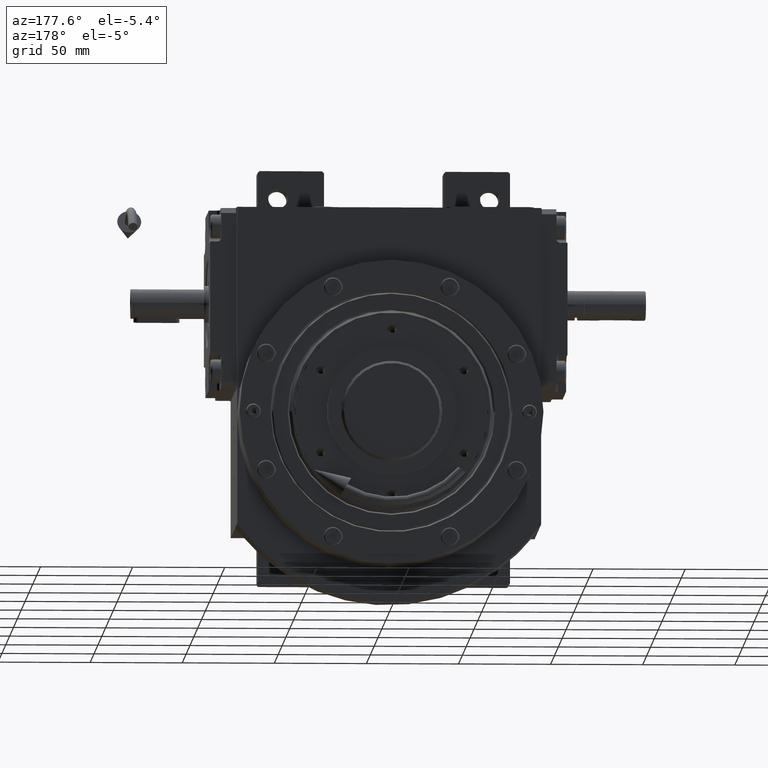
[diagram: clean part render]
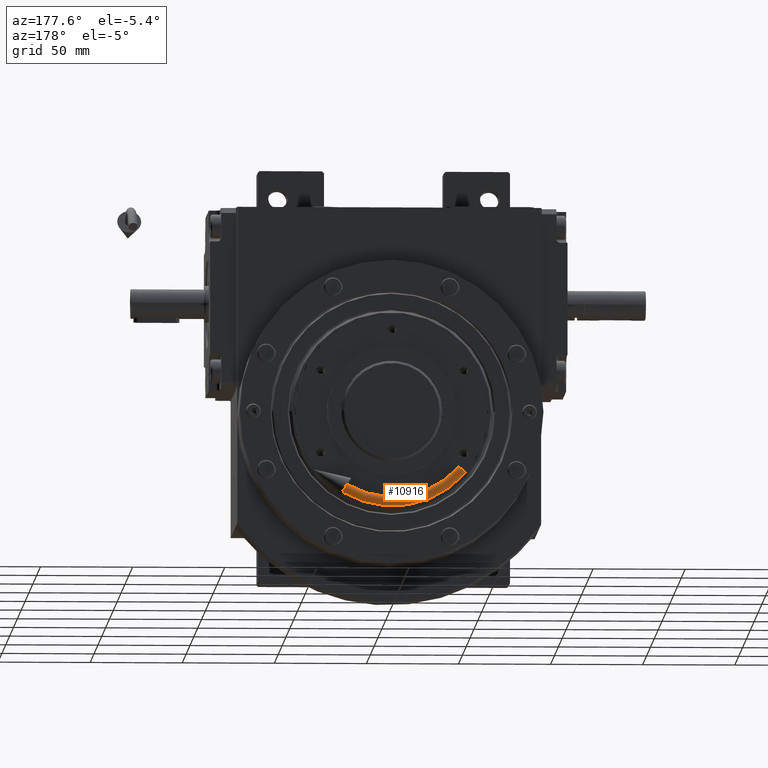
[diagram: same view with one face highlighted and labeled with its STEP entity id]
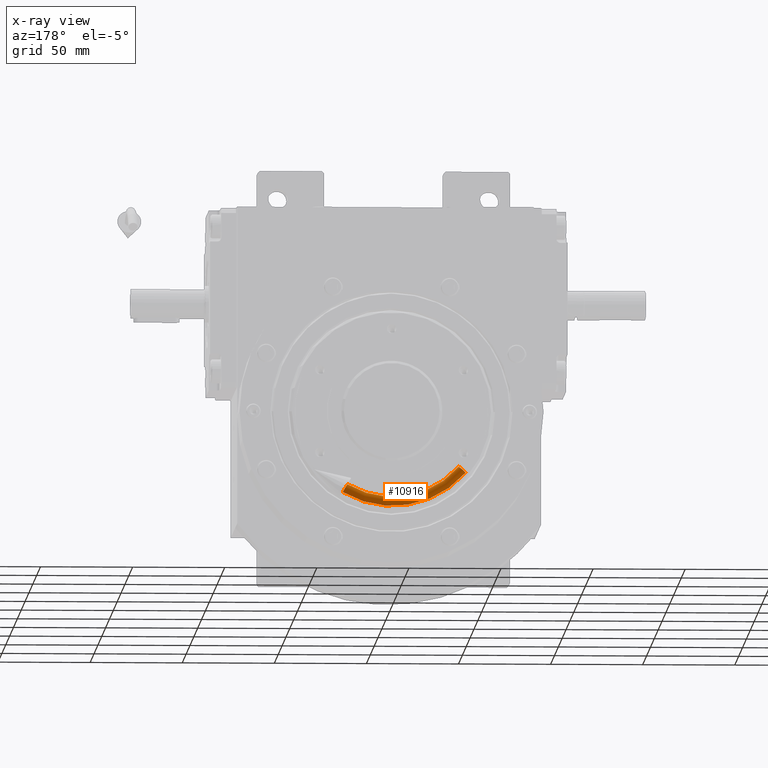
[diagram: x-ray of the same camera — body ghosted, the highlighted face saturated]
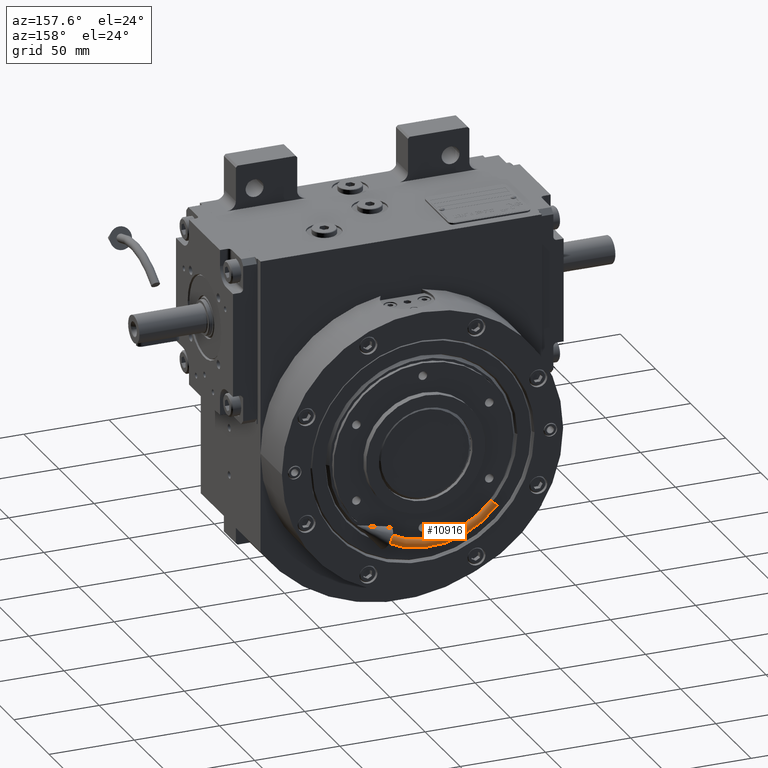
[diagram: same view with one face highlighted and labeled with its STEP entity id]
A machine part, auxiliary view. The second image highlights one B-rep face of the part: STEP entity #10916.
The next image is the same camera in x-ray: the body ghosted, the highlighted face saturated — about 0% of this face is hidden behind the body in this view.
A second angle (auxiliary view) of the same face is appended — the face is thin or edge-on in the first view.
In plain terms, the highlighted toroidal blend (fillet) surface has major radius 50 mm and minor (blend) radius 2.5 mm.
Its self-contained STEP definition (entity closure, byte-faithful):
#572 = ORIENTED_EDGE ( 'NONE', *, *, #23045, .T. ) ;
#2757 = CARTESIAN_POINT ( 'NONE',  ( -49.99999999999962341, 0.000000000000000000, -1.387778780781445676E-14 ) ) ;
#4144 = AXIS2_PLACEMENT_3D ( 'NONE', #9026, #57862, #29379 ) ;
#4741 = CARTESIAN_POINT ( 'NONE',  ( -47.50000000001650591, 0.000000000000000000, -1.401656568589166416E-14 ) ) ;
#9026 = CARTESIAN_POINT ( 'NONE',  ( 6.249910015488181172E-32, -1.357162610802968412E-14, -3.773734306815928641E-48 ) ) ;
#10487 = DIRECTION ( 'NONE',  ( -2.041375527991182042E-16, -1.000000000000000000, 1.232595164407830946E-32 ) ) ;
#10916 = ADVANCED_FACE ( 'NONE', ( #54455 ), #60749, .T. ) ;
#11720 = VERTEX_POINT ( 'NONE', #4741 ) ;
#12761 = DIRECTION ( 'NONE',  ( 1.000000000000000000, 0.000000000000000000, -5.551115123125813517E-17 ) ) ;
#13420 = CIRCLE ( 'NONE', #4144, 47.50000000001686828 ) ;
#18073 = VERTEX_POINT ( 'NONE', #21750 ) ;
#18174 = CIRCLE ( 'NONE', #33656, 2.499999999983113064 ) ;
#19080 = DIRECTION ( 'NONE',  ( 1.000000000000000000, -2.041375527991181795E-16, 0.000000000000000000 ) ) ;
#19493 = VERTEX_POINT ( 'NONE', #28733 ) ;
#20074 = EDGE_LOOP ( 'NONE', ( #54511, #32533, #30378, #572 ) ) ;
#21750 = CARTESIAN_POINT ( 'NONE',  ( -52.49999999998293276, -3.160566285864233684E-15, -1.373900992973723831E-14 ) ) ;
#22234 = EDGE_CURVE ( 'NONE', #49936, #18073, #53325, .T. ) ;
#22475 = DIRECTION ( 'NONE',  ( 0.1736481776669271393, 1.686894387621676009E-16, -0.9848077530122086864 ) ) ;
#23045 = EDGE_CURVE ( 'NONE', #11720, #18073, #46150, .T. ) ;
#28733 = CARTESIAN_POINT ( 'NONE',  ( -8.248288439181953535, -1.188784069127382043E-14, 46.77836826809632953 ) ) ;
#29142 = DIRECTION ( 'NONE',  ( -2.041375527991182042E-16, -1.000000000000000000, 1.232595164407830946E-32 ) ) ;
#29379 = DIRECTION ( 'NONE',  ( 1.000000000000000000, -2.041375527991182042E-16, 0.000000000000000000 ) ) ;
#30378 = ORIENTED_EDGE ( 'NONE', *, *, #38933, .T. ) ;
#32393 = CARTESIAN_POINT ( 'NONE',  ( -9.116529327510729530, -1.201676182087502474E-14, 51.70240703312413189 ) ) ;
#32533 = ORIENTED_EDGE ( 'NONE', *, *, #47300, .F. ) ;
#33656 = AXIS2_PLACEMENT_3D ( 'NONE', #46726, #51882, #22475 ) ;
#35511 = DIRECTION ( 'NONE',  ( 5.551115123125820913E-17, 0.000000000000000000, 1.000000000000000000 ) ) ;
#36874 = DIRECTION ( 'NONE',  ( 1.000000000000000000, -2.041375527991182042E-16, -5.551115123125820913E-17 ) ) ;
#38933 = EDGE_CURVE ( 'NONE', #19493, #11720, #13420, .T. ) ;
#44054 = AXIS2_PLACEMENT_3D ( 'NONE', #2757, #35511, #12761 ) ;
#46150 = CIRCLE ( 'NONE', #44054, 2.499999999983113064 ) ;
#46726 = CARTESIAN_POINT ( 'NONE',  ( -8.682408883346308670, -1.387778780781445676E-14, 49.24038765061003176 ) ) ;
#47300 = EDGE_CURVE ( 'NONE', #19493, #49936, #18174, .T. ) ;
#49936 = VERTEX_POINT ( 'NONE', #32393 ) ;
#51882 = DIRECTION ( 'NONE',  ( 0.9848077530122086864, -2.010362446775138044E-16, 0.1736481776669274446 ) ) ;
#53325 = CIRCLE ( 'NONE', #60538, 52.49999999998313882 ) ;
#53388 = CARTESIAN_POINT ( 'NONE',  ( 0.000000000000000000, -1.387778780781445676E-14, 0.000000000000000000 ) ) ;
#54455 = FACE_OUTER_BOUND ( 'NONE', #20074, .T. ) ;
#54511 = ORIENTED_EDGE ( 'NONE', *, *, #22234, .F. ) ;
#56257 = CARTESIAN_POINT ( 'NONE',  ( 0.000000000000000000, -1.387778780781445676E-14, 0.000000000000000000 ) ) ;
#57862 = DIRECTION ( 'NONE',  ( -2.041375527991182042E-16, -1.000000000000000000, 1.232595164407830946E-32 ) ) ;
#60538 = AXIS2_PLACEMENT_3D ( 'NONE', #53388, #29142, #19080 ) ;
#60749 = TOROIDAL_SURFACE ( 'NONE', #63810, 50.00000000000000000, 2.499999999983133048 ) ;
#63810 = AXIS2_PLACEMENT_3D ( 'NONE', #56257, #10487, #36874 ) ;